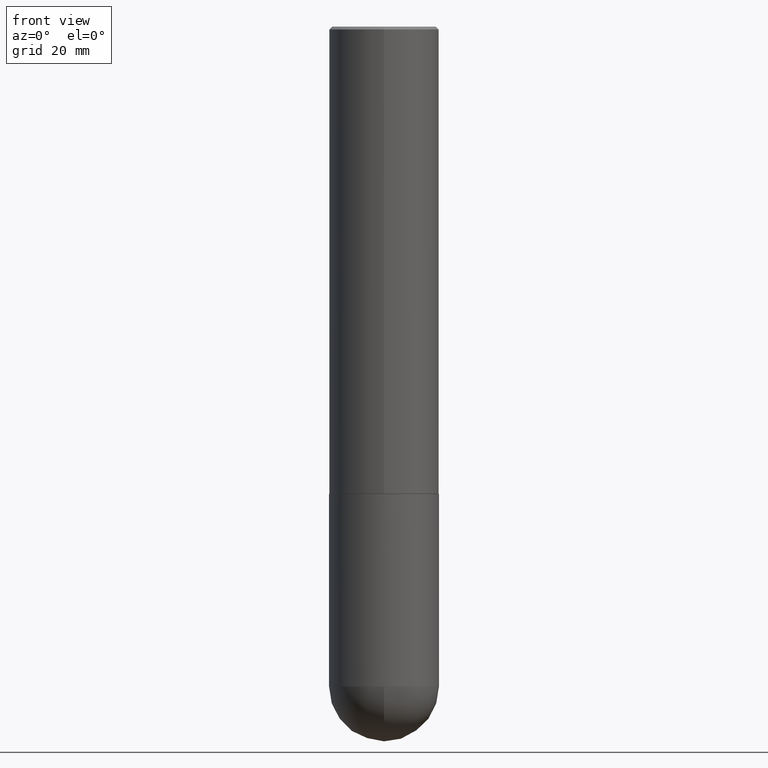
[diagram: clean part render]
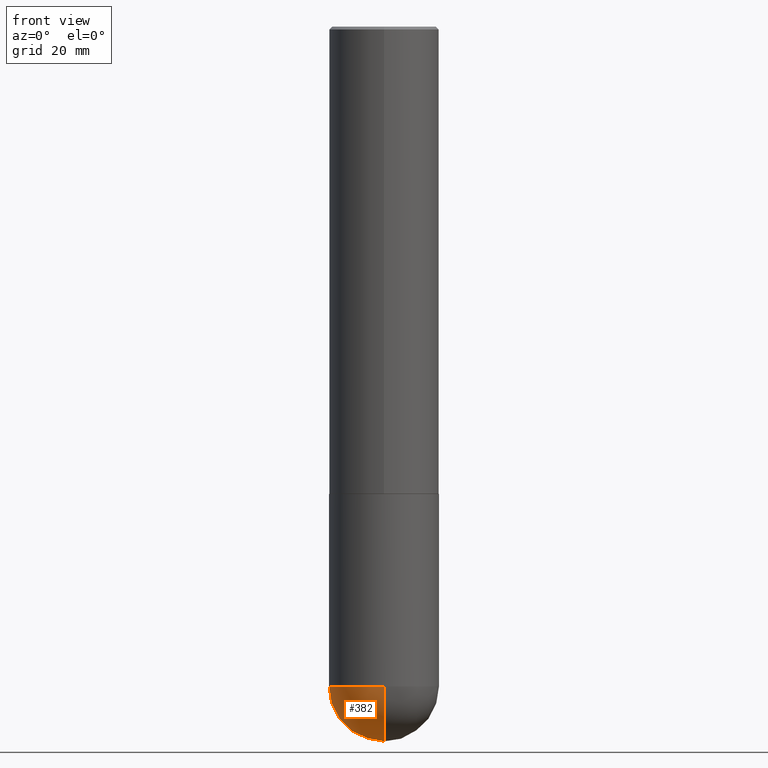
[diagram: same view with one face highlighted and labeled with its STEP entity id]
A machine part, front view. The second image highlights one B-rep face of the part: STEP entity #382.
In plain terms, the highlighted spherical surface has radius 10 mm.
Its self-contained STEP definition (entity closure, byte-faithful):
#3 = CARTESIAN_POINT ( 'NONE',  ( 1.155337282794106175E-28, -1.649515443723055925E-14, -4.724400000000000155 ) ) ;
#19 = CARTESIAN_POINT ( 'NONE',  ( 1.155337282794106175E-28, -1.649515443723055925E-14, -4.724400000000000155 ) ) ;
#28 = DIRECTION ( 'NONE',  ( 1.000000000000000000, -6.982962677686265133E-15, 0.000000000000000000 ) ) ;
#34 = CIRCLE ( 'NONE', #272, 0.3936999999999999389 ) ;
#38 = AXIS2_PLACEMENT_3D ( 'NONE', #274, #108, #172 ) ;
#54 = EDGE_LOOP ( 'NONE', ( #183, #165, #56, #316 ) ) ;
#56 = ORIENTED_EDGE ( 'NONE', *, *, #114, .F. ) ;
#75 = DIRECTION ( 'NONE',  ( 1.000000000000000000, -6.982962677686265133E-15, 0.000000000000000000 ) ) ;
#82 = EDGE_CURVE ( 'NONE', #365, #405, #94, .T. ) ;
#94 = CIRCLE ( 'NONE', #391, 0.3937000000000003830 ) ;
#108 = DIRECTION ( 'NONE',  ( -1.000000000000000000, 7.105427357601001070E-15, -4.926315508542082329E-29 ) ) ;
#114 = EDGE_CURVE ( 'NONE', #220, #230, #219, .T. ) ;
#148 = CARTESIAN_POINT ( 'NONE',  ( 2.749192406205197601E-15, 0.3936999999999834521, -4.724400000000001931 ) ) ;
#153 = CIRCLE ( 'NONE', #38, 0.3937000000000003830 ) ;
#165 = ORIENTED_EDGE ( 'NONE', *, *, #227, .T. ) ;
#172 = DIRECTION ( 'NONE',  ( -7.105427357600999492E-15, -1.000000000000000000, 0.000000000000000000 ) ) ;
#173 = CARTESIAN_POINT ( 'NONE',  ( 1.122225305002717438E-28, -1.696933680537060797E-14, -4.724400000000000155 ) ) ;
#183 = ORIENTED_EDGE ( 'NONE', *, *, #82, .F. ) ;
#213 = DIRECTION ( 'NONE',  ( 6.982962677686265133E-15, 1.000000000000000000, 0.000000000000000000 ) ) ;
#216 = AXIS2_PLACEMENT_3D ( 'NONE', #331, #324, #224 ) ;
#219 = CIRCLE ( 'NONE', #304, 0.3936999999999999389 ) ;
#220 = VERTEX_POINT ( 'NONE', #266 ) ;
#224 = DIRECTION ( 'NONE',  ( 6.982962677686265922E-15, 1.000000000000000000, -4.163344669033671690E-15 ) ) ;
#227 = EDGE_CURVE ( 'NONE', #365, #230, #153, .T. ) ;
#230 = VERTEX_POINT ( 'NONE', #234 ) ;
#234 = CARTESIAN_POINT ( 'NONE',  ( -2.797406750687401585E-15, -0.3937000000000168698, -4.724399999999999267 ) ) ;
#246 = DIRECTION ( 'NONE',  ( -2.445468806185136597E-29, 3.491481338843145583E-15, 1.000000000000000000 ) ) ;
#266 = CARTESIAN_POINT ( 'NONE',  ( -0.3936999999999999389, -1.129211704408012183E-14, -4.724400000000000155 ) ) ;
#272 = AXIS2_PLACEMENT_3D ( 'NONE', #3, #246, #28 ) ;
#274 = CARTESIAN_POINT ( 'NONE',  ( 1.122225305002717438E-28, -1.696933680537060797E-14, -4.724400000000000155 ) ) ;
#279 = DIRECTION ( 'NONE',  ( 1.000000000000000000, -6.982962677686265922E-15, 4.883557194083112340E-29 ) ) ;
#289 = SPHERICAL_SURFACE ( 'NONE', #216, 0.3937000000000003830 ) ;
#304 = AXIS2_PLACEMENT_3D ( 'NONE', #19, #393, #75 ) ;
#316 = ORIENTED_EDGE ( 'NONE', *, *, #394, .F. ) ;
#324 = DIRECTION ( 'NONE',  ( -1.000000000000000000, 6.982962677686265922E-15, -4.883557194083112340E-29 ) ) ;
#331 = CARTESIAN_POINT ( 'NONE',  ( 1.122225305002717438E-28, -1.696933680537060797E-14, -4.724400000000000155 ) ) ;
#349 = FACE_OUTER_BOUND ( 'NONE', #54, .T. ) ;
#353 = CARTESIAN_POINT ( 'NONE',  ( 1.220186806742475998E-28, -1.831982583623194050E-14, -5.118100000000000094 ) ) ;
#365 = VERTEX_POINT ( 'NONE', #353 ) ;
#382 = ADVANCED_FACE ( 'NONE', ( #349 ), #289, .T. ) ;
#391 = AXIS2_PLACEMENT_3D ( 'NONE', #173, #279, #213 ) ;
#393 = DIRECTION ( 'NONE',  ( -2.445468806185136597E-29, 3.491481338843145583E-15, 1.000000000000000000 ) ) ;
#394 = EDGE_CURVE ( 'NONE', #405, #220, #34, .T. ) ;
#405 = VERTEX_POINT ( 'NONE', #148 ) ;